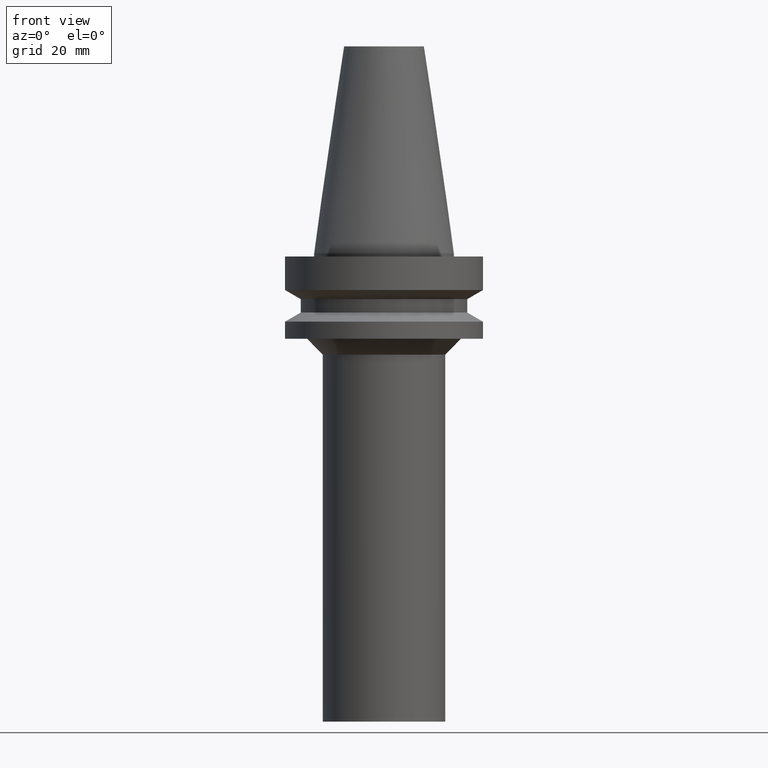
[diagram: clean part render]
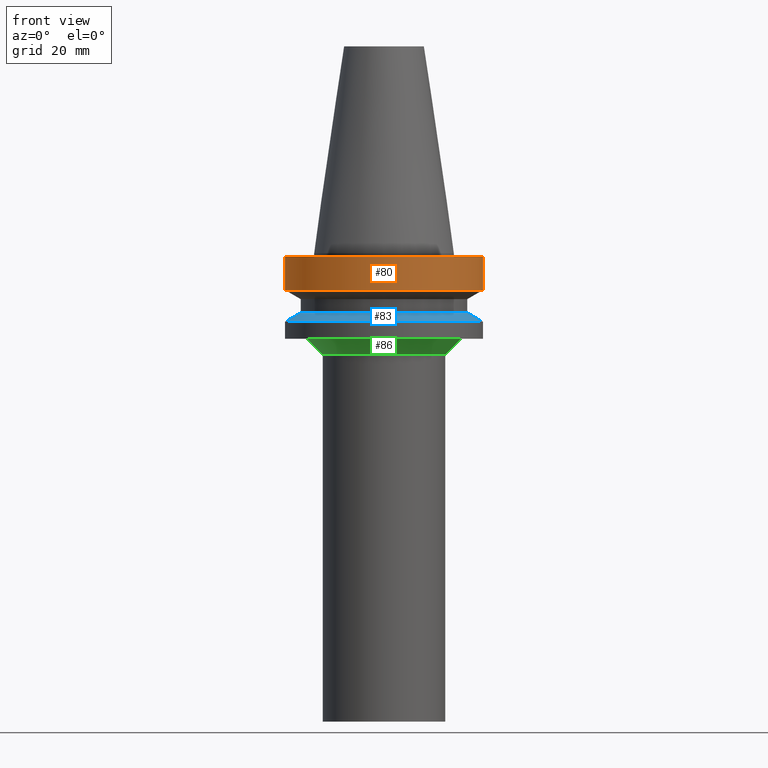
[diagram: same view with three faces highlighted in distinct colors, each labeled with its STEP entity id]
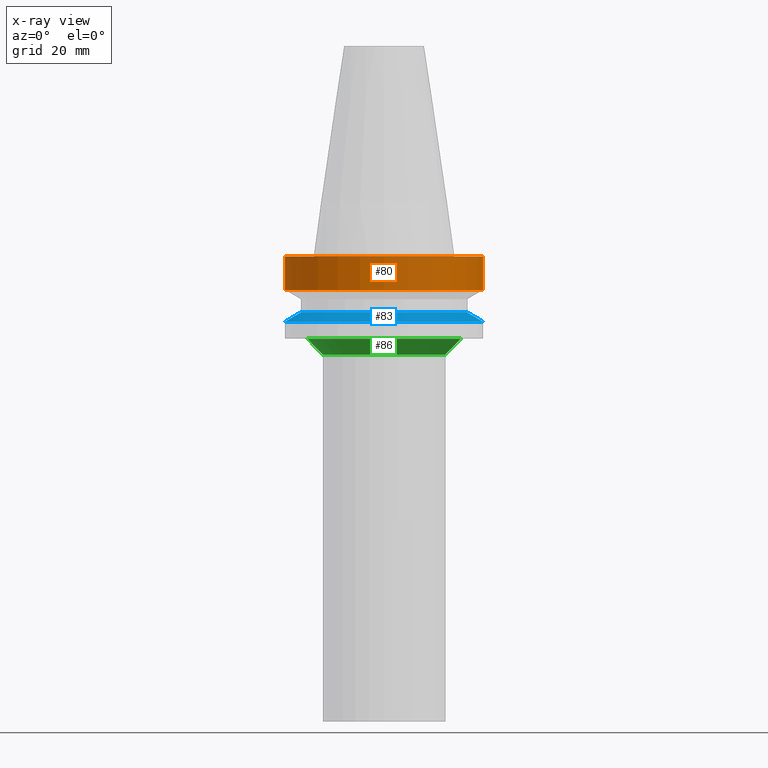
[diagram: x-ray of the same camera — body ghosted, the three highlighted faces saturated]
A machine part, front view with three faces highlighted in distinct colors.
The next image is the same camera in x-ray (body ghosted, the three faces saturated) — at least one of them is partly hidden behind the body in this view.
Their STEP definitions:

[orange] entity #80 — the highlighted cylindrical surface (bore or boss wall) has radius 31.5 mm, axis along (-0, -0, 1).
#80=ADVANCED_FACE('',(#102,#103),#104,.T.);
#102=FACE_BOUND('',#139,.T.);
#103=FACE_BOUND('',#140,.T.);
#104=CYLINDRICAL_SURFACE('',#141,31.5);
#139=EDGE_LOOP('',(#186));
#140=EDGE_LOOP('',(#187));
#141=AXIS2_PLACEMENT_3D('',#188,#189,#190);
#186=ORIENTED_EDGE('',*,*,#231,.F.);
#187=ORIENTED_EDGE('',*,*,#230,.T.);
#188=CARTESIAN_POINT('',(3.85763741731417E-016,7.71527483462834E-016,-6.30000000000001));
#189=DIRECTION('',(-6.12323399573677E-017,-1.22464679914735E-016,1.0));
#190=DIRECTION('',(-1.23259516440783E-032,1.0,1.22464679914735E-016));
#230=EDGE_CURVE('',#246,#246,#247,.T.);
#231=EDGE_CURVE('',#248,#248,#249,.T.);
#246=VERTEX_POINT('',#270);
#247=CIRCLE('',#271,31.5);
#248=VERTEX_POINT('',#272);
#249=CIRCLE('',#273,31.5);
#270=CARTESIAN_POINT('',(6.12323399573673E-017,31.5,-0.999999999999996));
#271=AXIS2_PLACEMENT_3D('',#298,#299,#300);
#272=CARTESIAN_POINT('',(7.10295143505464E-016,31.5,-11.6));
#273=AXIS2_PLACEMENT_3D('',#301,#302,#303);
#298=CARTESIAN_POINT('',(6.12323399573677E-017,1.22464679914735E-016,-1.0));
#299=DIRECTION('',(6.12323399573677E-017,1.22464679914735E-016,-1.0));
#300=DIRECTION('',(-1.23259516440783E-032,1.0,1.22464679914735E-016));
#301=CARTESIAN_POINT('',(7.10295143505464E-016,1.42059028701093E-015,-11.6));
#302=DIRECTION('',(6.12323399573677E-017,1.22464679914735E-016,-1.0));
#303=DIRECTION('',(-1.23259516440783E-032,1.0,1.22464679914735E-016));

[blue] entity #83 — the highlighted conical surface has half-angle 60 deg.
#83=ADVANCED_FACE('',(#111,#112),#113,.T.);
#111=FACE_BOUND('',#148,.T.);
#112=FACE_BOUND('',#149,.T.);
#113=CONICAL_SURFACE('',#150,29.0,1.04719755058882);
#148=EDGE_LOOP('',(#201));
#149=EDGE_LOOP('',(#202));
#150=AXIS2_PLACEMENT_3D('',#203,#204,#205);
#201=ORIENTED_EDGE('',*,*,#234,.F.);
#202=ORIENTED_EDGE('',*,*,#233,.T.);
#203=CARTESIAN_POINT('',(1.23423727306135E-015,2.46847454612269E-015,-20.156624325));
#204=DIRECTION('',(6.12323399573677E-017,1.22464679914735E-016,-1.0));
#205=DIRECTION('',(-1.23259516440783E-032,1.0,1.22464679914735E-016));
#233=EDGE_CURVE('',#252,#252,#253,.T.);
#234=EDGE_CURVE('',#254,#254,#255,.T.);
#252=VERTEX_POINT('',#276);
#253=CIRCLE('',#277,26.5);
#254=VERTEX_POINT('',#278);
#255=CIRCLE('',#279,31.5);
#276=CARTESIAN_POINT('',(1.14585600304355E-015,26.5,-18.71324865));
#277=AXIS2_PLACEMENT_3D('',#307,#308,#309);
#278=CARTESIAN_POINT('',(1.32261854307914E-015,31.5,-21.6));
#279=AXIS2_PLACEMENT_3D('',#310,#311,#312);
#307=CARTESIAN_POINT('',(1.14585600304355E-015,2.2917120060871E-015,-18.71324865));
#308=DIRECTION('',(6.12323399573677E-017,1.22464679914735E-016,-1.0));
#309=DIRECTION('',(-1.23259516440783E-032,1.0,1.22464679914735E-016));
#310=CARTESIAN_POINT('',(1.32261854307914E-015,2.64523708615828E-015,-21.6));
#311=DIRECTION('',(6.12323399573677E-017,1.22464679914735E-016,-1.0));
#312=DIRECTION('',(-1.23259516440783E-032,1.0,1.22464679914735E-016));

[green] entity #86 — the highlighted conical surface has half-angle 45 deg.
#86=ADVANCED_FACE('',(#120,#121),#122,.T.);
#120=FACE_BOUND('',#157,.T.);
#121=FACE_BOUND('',#158,.T.);
#122=CONICAL_SURFACE('',#159,22.0,0.785398163397448);
#157=EDGE_LOOP('',(#216));
#158=EDGE_LOOP('',(#217));
#159=AXIS2_PLACEMENT_3D('',#218,#219,#220);
#216=ORIENTED_EDGE('',*,*,#237,.F.);
#217=ORIENTED_EDGE('',*,*,#236,.T.);
#218=CARTESIAN_POINT('',(1.80635402874235E-015,3.61270805748469E-015,-29.5));
#219=DIRECTION('',(-6.12323399573677E-017,-1.22464679914735E-016,1.0));
#220=DIRECTION('',(-1.23259516440783E-032,1.0,1.22464679914735E-016));
#236=EDGE_CURVE('',#258,#258,#259,.T.);
#237=EDGE_CURVE('',#260,#260,#261,.T.);
#258=VERTEX_POINT('',#282);
#259=CIRCLE('',#283,24.5);
#260=VERTEX_POINT('',#284);
#261=CIRCLE('',#285,19.5);
#282=CARTESIAN_POINT('',(1.65327317884893E-015,24.5,-27.0));
#283=AXIS2_PLACEMENT_3D('',#316,#317,#318);
#284=CARTESIAN_POINT('',(1.95943487863576E-015,19.5,-32.0));
#285=AXIS2_PLACEMENT_3D('',#319,#320,#321);
#316=CARTESIAN_POINT('',(1.65327317884893E-015,3.30654635769785E-015,-27.0));
#317=DIRECTION('',(6.12323399573677E-017,1.22464679914735E-016,-1.0));
#318=DIRECTION('',(-1.23259516440783E-032,1.0,1.22464679914735E-016));
#319=CARTESIAN_POINT('',(1.95943487863577E-015,3.91886975727153E-015,-32.0));
#320=DIRECTION('',(6.12323399573677E-017,1.22464679914735E-016,-1.0));
#321=DIRECTION('',(-1.23259516440783E-032,1.0,1.22464679914735E-016));